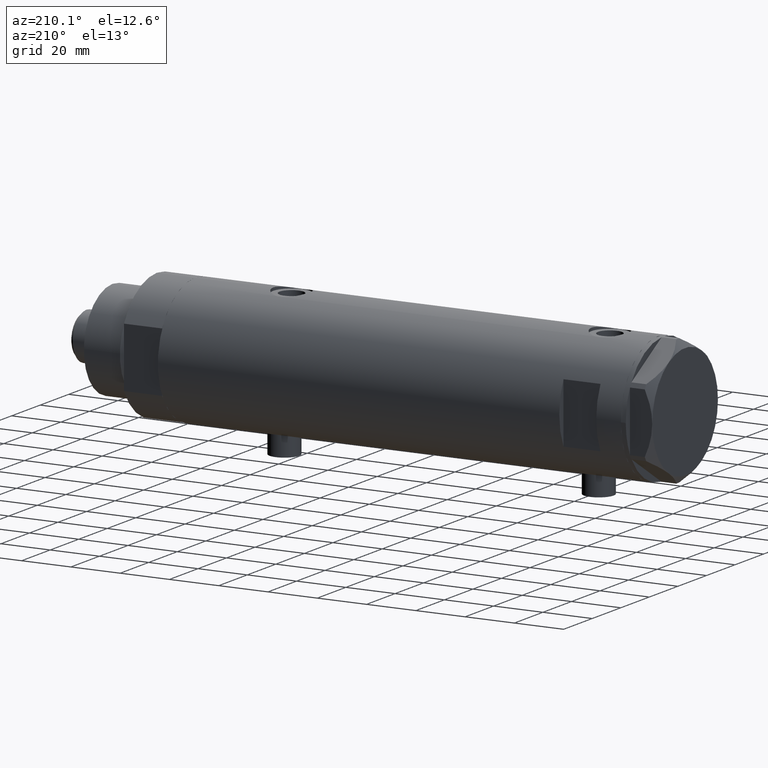
[diagram: clean part render]
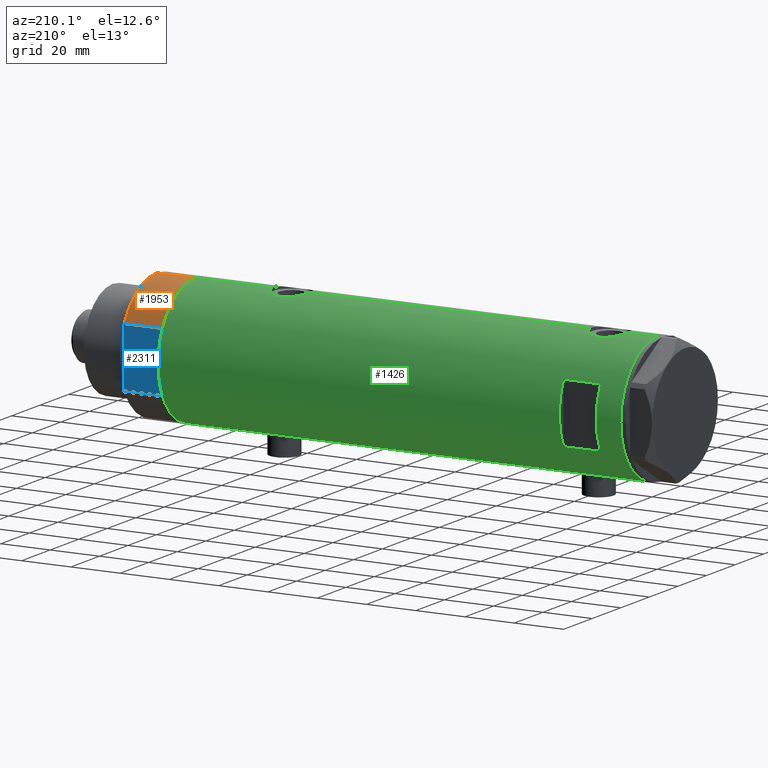
[diagram: same view with three faces highlighted in distinct colors, each labeled with its STEP entity id]
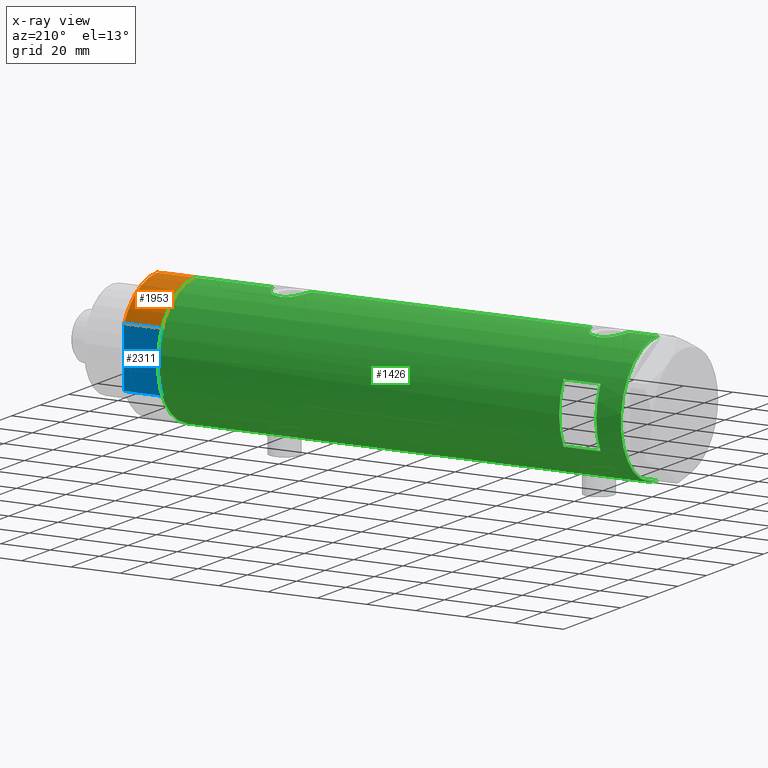
[diagram: x-ray of the same camera — body ghosted, the three highlighted faces saturated]
A machine part, auxiliary view with three faces highlighted in distinct colors.
The next image is the same camera in x-ray (body ghosted, the three faces saturated) — at least one of them is partly hidden behind the body in this view.
Their STEP definitions:

[orange] entity #1953 — the highlighted cylindrical surface (partial cylindrical patch) has radius 26 mm, axis along (-1, -0, 0).
#199 = CARTESIAN_POINT ( 'NONE',  ( 0.000000000000000000, 0.000000000000000000, 15.50000000000000000 ) ) ;
#253 = AXIS2_PLACEMENT_3D ( 'NONE', #199, #1687, #1322 ) ;
#622 = CARTESIAN_POINT ( 'NONE',  ( -12.12435565298214613, 23.00000000000000355, 15.50000000000000000 ) ) ;
#839 = EDGE_CURVE ( 'NONE', #2987, #3425, #1497, .T. ) ;
#883 = DIRECTION ( 'NONE',  ( 0.000000000000000000, 0.000000000000000000, 1.000000000000000000 ) ) ;
#924 = ORIENTED_EDGE ( 'NONE', *, *, #839, .F. ) ;
#943 = EDGE_CURVE ( 'NONE', #4454, #2987, #2189, .T. ) ;
#1066 = CYLINDRICAL_SURFACE ( 'NONE', #253, 26.00000000000000355 ) ;
#1110 = VECTOR ( 'NONE', #4506, 1000.000000000000000 ) ;
#1158 = CARTESIAN_POINT ( 'NONE',  ( 0.000000000000000000, 0.000000000000000000, 0.000000000000000000 ) ) ;
#1253 = VERTEX_POINT ( 'NONE', #4038 ) ;
#1259 = AXIS2_PLACEMENT_3D ( 'NONE', #2351, #3118, #1921 ) ;
#1292 = ORIENTED_EDGE ( 'NONE', *, *, #943, .F. ) ;
#1322 = DIRECTION ( 'NONE',  ( -1.000000000000000000, 0.000000000000000000, 0.000000000000000000 ) ) ;
#1373 = EDGE_LOOP ( 'NONE', ( #924, #1292, #1493, #3752 ) ) ;
#1493 = ORIENTED_EDGE ( 'NONE', *, *, #4557, .F. ) ;
#1497 = LINE ( 'NONE', #2986, #1110 ) ;
#1687 = DIRECTION ( 'NONE',  ( -0.000000000000000000, -0.000000000000000000, -1.000000000000000000 ) ) ;
#1751 = CARTESIAN_POINT ( 'NONE',  ( -12.12435565298215145, 23.00000000000000355, 0.000000000000000000 ) ) ;
#1921 = DIRECTION ( 'NONE',  ( 1.000000000000000000, 0.000000000000000000, 0.000000000000000000 ) ) ;
#1953 = ADVANCED_FACE ( 'NONE', ( #2550 ), #1066, .T. ) ;
#2189 = CIRCLE ( 'NONE', #1259, 26.00000000000000355 ) ;
#2351 = CARTESIAN_POINT ( 'NONE',  ( 0.000000000000000000, 0.000000000000000000, 15.50000000000000000 ) ) ;
#2508 = LINE ( 'NONE', #1751, #3801 ) ;
#2550 = FACE_OUTER_BOUND ( 'NONE', #1373, .T. ) ;
#2986 = CARTESIAN_POINT ( 'NONE',  ( -26.00000000000000355, 0.000000000000000000, 15.50000000000000000 ) ) ;
#2987 = VERTEX_POINT ( 'NONE', #3952 ) ;
#3118 = DIRECTION ( 'NONE',  ( 0.000000000000000000, 0.000000000000000000, 1.000000000000000000 ) ) ;
#3324 = CIRCLE ( 'NONE', #4834, 26.00000000000000355 ) ;
#3425 = VERTEX_POINT ( 'NONE', #4125 ) ;
#3752 = ORIENTED_EDGE ( 'NONE', *, *, #3984, .T. ) ;
#3801 = VECTOR ( 'NONE', #4062, 1000.000000000000000 ) ;
#3952 = CARTESIAN_POINT ( 'NONE',  ( -26.00000000000000355, 0.000000000000000000, 15.50000000000000000 ) ) ;
#3984 = EDGE_CURVE ( 'NONE', #1253, #3425, #3324, .T. ) ;
#4038 = CARTESIAN_POINT ( 'NONE',  ( -12.12435565298215145, 23.00000000000000355, 0.000000000000000000 ) ) ;
#4062 = DIRECTION ( 'NONE',  ( -0.000000000000000000, -0.000000000000000000, 1.000000000000000000 ) ) ;
#4125 = CARTESIAN_POINT ( 'NONE',  ( -26.00000000000000355, 0.000000000000000000, 0.000000000000000000 ) ) ;
#4454 = VERTEX_POINT ( 'NONE', #622 ) ;
#4506 = DIRECTION ( 'NONE',  ( -0.000000000000000000, -0.000000000000000000, -1.000000000000000000 ) ) ;
#4555 = DIRECTION ( 'NONE',  ( 1.000000000000000000, 0.000000000000000000, 0.000000000000000000 ) ) ;
#4557 = EDGE_CURVE ( 'NONE', #1253, #4454, #2508, .T. ) ;
#4834 = AXIS2_PLACEMENT_3D ( 'NONE', #1158, #883, #4555 ) ;

[blue] entity #2311 — the highlighted planar face has unit normal (0, -1, -0).
#133 = PLANE ( 'NONE',  #3388 ) ;
#201 = EDGE_CURVE ( 'NONE', #4454, #1129, #1566, .T. ) ;
#263 = ORIENTED_EDGE ( 'NONE', *, *, #201, .T. ) ;
#360 = EDGE_CURVE ( 'NONE', #4791, #1129, #3197, .T. ) ;
#529 = FACE_OUTER_BOUND ( 'NONE', #1896, .T. ) ;
#616 = CARTESIAN_POINT ( 'NONE',  ( 12.12435565298214080, 23.00000000000000355, 0.000000000000000000 ) ) ;
#622 = CARTESIAN_POINT ( 'NONE',  ( -12.12435565298214613, 23.00000000000000355, 15.50000000000000000 ) ) ;
#881 = ORIENTED_EDGE ( 'NONE', *, *, #360, .F. ) ;
#1129 = VERTEX_POINT ( 'NONE', #4835 ) ;
#1206 = DIRECTION ( 'NONE',  ( 1.000000000000000000, 0.000000000000000000, 0.000000000000000000 ) ) ;
#1237 = DIRECTION ( 'NONE',  ( 1.000000000000000000, 0.000000000000000000, 0.000000000000000000 ) ) ;
#1253 = VERTEX_POINT ( 'NONE', #4038 ) ;
#1566 = LINE ( 'NONE', #4566, #3058 ) ;
#1731 = ORIENTED_EDGE ( 'NONE', *, *, #4557, .T. ) ;
#1751 = CARTESIAN_POINT ( 'NONE',  ( -12.12435565298215145, 23.00000000000000355, 0.000000000000000000 ) ) ;
#1896 = EDGE_LOOP ( 'NONE', ( #263, #881, #4476, #1731 ) ) ;
#2128 = VECTOR ( 'NONE', #1206, 1000.000000000000000 ) ;
#2311 = ADVANCED_FACE ( 'NONE', ( #529 ), #133, .F. ) ;
#2421 = DIRECTION ( 'NONE',  ( 0.000000000000000000, -1.000000000000000000, 0.000000000000000000 ) ) ;
#2480 = DIRECTION ( 'NONE',  ( -0.000000000000000000, -0.000000000000000000, 1.000000000000000000 ) ) ;
#2508 = LINE ( 'NONE', #1751, #3801 ) ;
#2993 = LINE ( 'NONE', #3460, #2128 ) ;
#3054 = VECTOR ( 'NONE', #2480, 1000.000000000000000 ) ;
#3058 = VECTOR ( 'NONE', #1237, 1000.000000000000000 ) ;
#3113 = DIRECTION ( 'NONE',  ( 0.000000000000000000, -0.000000000000000000, -1.000000000000000000 ) ) ;
#3197 = LINE ( 'NONE', #4387, #3054 ) ;
#3388 = AXIS2_PLACEMENT_3D ( 'NONE', #3487, #2421, #3113 ) ;
#3460 = CARTESIAN_POINT ( 'NONE',  ( -12.12435565298215145, 23.00000000000000355, 0.000000000000000000 ) ) ;
#3487 = CARTESIAN_POINT ( 'NONE',  ( -12.12435565298215145, 23.00000000000000355, 0.000000000000000000 ) ) ;
#3801 = VECTOR ( 'NONE', #4062, 1000.000000000000000 ) ;
#3893 = EDGE_CURVE ( 'NONE', #1253, #4791, #2993, .T. ) ;
#4038 = CARTESIAN_POINT ( 'NONE',  ( -12.12435565298215145, 23.00000000000000355, 0.000000000000000000 ) ) ;
#4062 = DIRECTION ( 'NONE',  ( -0.000000000000000000, -0.000000000000000000, 1.000000000000000000 ) ) ;
#4387 = CARTESIAN_POINT ( 'NONE',  ( 12.12435565298215323, 23.00000000000000355, 0.000000000000000000 ) ) ;
#4454 = VERTEX_POINT ( 'NONE', #622 ) ;
#4476 = ORIENTED_EDGE ( 'NONE', *, *, #3893, .F. ) ;
#4557 = EDGE_CURVE ( 'NONE', #1253, #4454, #2508, .T. ) ;
#4566 = CARTESIAN_POINT ( 'NONE',  ( -12.12435565298215145, 23.00000000000000355, 15.50000000000000000 ) ) ;
#4791 = VERTEX_POINT ( 'NONE', #616 ) ;
#4835 = CARTESIAN_POINT ( 'NONE',  ( 12.12435565298214790, 23.00000000000000355, 15.50000000000000000 ) ) ;

[green] entity #1426 — the highlighted cylindrical surface (partial cylindrical patch) has radius 26 mm, axis along (-1, -0, 0).
#17 = B_SPLINE_CURVE_WITH_KNOTS ( 'NONE', 3,
 ( #1897, #3327, #3400, #2952, #50, #3030, #4544, #443, #3426, #485, #1647, #2723, #4662, #4691, #1285, #3079, #1608, #3845, #2404, #94, #2704, #3121, #3874, #2383, #2796, #2025, #185, #3103, #2330, #1585, #4614, #1236, #939, #515, #4589, #1989, #3497, #1789, #3287, #4439, #4711, #1332, #1071, #3938, #612, #2049 ),
 .UNSPECIFIED., .F., .F.,
 ( 4, 2, 2, 2, 2, 2, 2, 2, 2, 2, 2, 2, 2, 2, 2, 2, 2, 2, 2, 2, 2, 2, 4 ),
 ( 3.246886709775799722E-19, 0.001473395154583074379, 0.002210092731874609400, 0.002946790309166144421, 0.004420185463749214463, 0.005156883041040750786, 0.005893580618332287108, 0.007366975772915358017, 0.008840370927498430662, 0.009577068504789955708, 0.01031376608208147902, 0.01178716123666452911, 0.01326055639124757921, 0.01473395154583062930, 0.01547064912312214567, 0.01620734670041366204, 0.01694404427770517668, 0.01768074185499669479, 0.01915413700957973794, 0.02062753216416278457, 0.02210092731874583119, 0.02283762489603735277, 0.02357432247332888128 ),
 .UNSPECIFIED. ) ;
#19 = CARTESIAN_POINT ( 'NONE',  ( 25.31017500740586001, 5.951503630041874437, 79.02049592637401076 ) ) ;
#50 = CARTESIAN_POINT ( 'NONE',  ( 25.92799636947105313, 1.948138538329397651, -61.99677687788213376 ) ) ;
#65 = CARTESIAN_POINT ( 'NONE',  ( 26.00000000000000355, 0.000000000000000000, -93.95000000000000284 ) ) ;
#80 = CARTESIAN_POINT ( 'NONE',  ( -25.23766275406408965, 6.249830297096023557, 70.36191904555120402 ) ) ;
#94 = CARTESIAN_POINT ( 'NONE',  ( 24.97016856345952718, 7.245430721349219283, -56.70303040919392856 ) ) ;
#107 = CARTESIAN_POINT ( 'NONE',  ( -25.52242378584899640, 4.965907353613394193, 73.76719602921740204 ) ) ;
#131 = CARTESIAN_POINT ( 'NONE',  ( -25.81251897318926680, 3.135439098787735190, 75.37199178085172946 ) ) ;
#144 = CARTESIAN_POINT ( 'NONE',  ( 25.63006864069250668, 4.375159448492141223, 68.35345588241118264 ) ) ;
#155 = DIRECTION ( 'NONE',  ( 0.000000000000000000, 0.000000000000000000, 1.000000000000000000 ) ) ;
#156 = CARTESIAN_POINT ( 'NONE',  ( -26.00000000000000355, 3.184081677783118585E-15, -93.95000000000000284 ) ) ;
#173 = CARTESIAN_POINT ( 'NONE',  ( -25.42927140605242187, 5.422776733968214025, 73.08443996013286892 ) ) ;
#185 = CARTESIAN_POINT ( 'NONE',  ( 25.00820649268565887, 7.115348876445586335, -52.32815999524549966 ) ) ;
#198 = CARTESIAN_POINT ( 'NONE',  ( -25.99759026373432391, 0.4091325989570679389, 63.71000109955102175 ) ) ;
#204 = CARTESIAN_POINT ( 'NONE',  ( 26.00000000000000355, 0.000000000000000000, 93.95000000000000284 ) ) ;
#232 = CARTESIAN_POINT ( 'NONE',  ( 25.92799636947105668, 1.948138538329397651, 67.20322312211786198 ) ) ;
#266 = ORIENTED_EDGE ( 'NONE', *, *, #2728, .F. ) ;
#278 = CARTESIAN_POINT ( 'NONE',  ( -25.42927140605242187, 5.422776733968219354, -54.51556003986718224 ) ) ;
#285 = ORIENTED_EDGE ( 'NONE', *, *, #4533, .F. ) ;
#305 = CARTESIAN_POINT ( 'NONE',  ( -25.95015815577423268, 1.621168830448744158, -51.61041429560182081 ) ) ;
#320 = CARTESIAN_POINT ( 'NONE',  ( -25.36894112891956254, 5.694149517195242538, -60.23482505198307990 ) ) ;
#327 = DIRECTION ( 'NONE',  ( 0.000000000000000000, 0.000000000000000000, 1.000000000000000000 ) ) ;
#329 = CARTESIAN_POINT ( 'NONE',  ( -25.38675822915647728, 5.615881323213575804, -54.87693218337989265 ) ) ;
#331 = AXIS2_PLACEMENT_3D ( 'NONE', #1094, #1122, #1488 ) ;
#338 = CARTESIAN_POINT ( 'NONE',  ( 25.97197502027376004, 1.230965554787597060, 81.85240824498373513 ) ) ;
#347 = ORIENTED_EDGE ( 'NONE', *, *, #877, .F. ) ;
#352 = EDGE_CURVE ( 'NONE', #3330, #1838, #2098, .T. ) ;
#359 = DIRECTION ( 'NONE',  ( 1.000000000000000000, 0.000000000000000000, 0.000000000000000000 ) ) ;
#361 = VECTOR ( 'NONE', #695, 1000.000000000000000 ) ;
#364 = VERTEX_POINT ( 'NONE', #536 ) ;
#368 = CARTESIAN_POINT ( 'NONE',  ( 25.78997056644825392, 3.329333406239046056, 81.18834808433850014 ) ) ;
#384 = CARTESIAN_POINT ( 'NONE',  ( 25.59685363299823635, 4.579266302355753382, 80.40972068102654191 ) ) ;
#411 = CARTESIAN_POINT ( 'NONE',  ( 25.38117076385347559, 5.641057083563602248, 79.39856579741847042 ) ) ;
#419 = EDGE_CURVE ( 'NONE', #4272, #3283, #3544, .T. ) ;
#443 = CARTESIAN_POINT ( 'NONE',  ( 25.78922176490237916, 3.335318700939508219, -61.48550568766475521 ) ) ;
#483 = VECTOR ( 'NONE', #1408, 1000.000000000000000 ) ;
#485 = CARTESIAN_POINT ( 'NONE',  ( 25.63006864069249602, 4.375159448492148329, -60.84654411758881309 ) ) ;
#515 = CARTESIAN_POINT ( 'NONE',  ( 25.38117076385348625, 5.641057083563588037, -49.80143420258151821 ) ) ;
#536 = CARTESIAN_POINT ( 'NONE',  ( -12.12435565298214080, 23.00000000000000355, 68.95000000000000284 ) ) ;
#548 = CARTESIAN_POINT ( 'NONE',  ( -25.33346170681504361, 5.849967696906720249, 72.15947052099508596 ) ) ;
#555 = CARTESIAN_POINT ( 'NONE',  ( 26.00000000000000355, 3.343657407582877388E-16, -62.25000000000000000 ) ) ;
#561 = ORIENTED_EDGE ( 'NONE', *, *, #593, .F. ) ;
#593 = EDGE_CURVE ( 'NONE', #4026, #4060, #1810, .T. ) ;
#603 = CARTESIAN_POINT ( 'NONE',  ( -25.31518616157687163, 5.930210831981644226, -59.66587117207024704 ) ) ;
#612 = CARTESIAN_POINT ( 'NONE',  ( 26.00000000000000000, 0.2455784580650491877, -47.25000000000000000 ) ) ;
#620 = VERTEX_POINT ( 'NONE', #1554 ) ;
#630 = CARTESIAN_POINT ( 'NONE',  ( -25.81251897318926680, 3.135439098787741852, -52.22800821914827907 ) ) ;
#638 = CARTESIAN_POINT ( 'NONE',  ( 25.17424625143663519, 6.506691718592092499, 70.68758373966274178 ) ) ;
#695 = DIRECTION ( 'NONE',  ( 0.000000000000000000, 0.000000000000000000, 1.000000000000000000 ) ) ;
#704 = CARTESIAN_POINT ( 'NONE',  ( -25.99009688862344092, 0.8219492608955333290, -51.44084060773424483 ) ) ;
#720 = ORIENTED_EDGE ( 'NONE', *, *, #947, .F. ) ;
#859 = EDGE_CURVE ( 'NONE', #2109, #4026, #2953, .T. ) ;
#861 = CARTESIAN_POINT ( 'NONE',  ( -25.81206132723604796, 3.139065735901513055, 64.53021230639123473 ) ) ;
#873 = CARTESIAN_POINT ( 'NONE',  ( 25.01140519645288762, 7.101774040639619479, 72.02607764299175130 ) ) ;
#877 = EDGE_CURVE ( 'NONE', #3257, #364, #3133, .T. ) ;
#878 = CARTESIAN_POINT ( 'NONE',  ( -25.99009688862344092, 0.8219492608955324409, 76.15915939226574949 ) ) ;
#907 = CARTESIAN_POINT ( 'NONE',  ( -25.67095236150574777, 4.133649689219788925, 74.65535228274264057 ) ) ;
#929 = CARTESIAN_POINT ( 'NONE',  ( -25.36894112891957320, 5.694149517195235433, 67.36517494801691441 ) ) ;
#930 = B_SPLINE_CURVE_WITH_KNOTS ( 'NONE', 3,
 ( #3588, #4069, #704, #3668, #305, #2841, #3211, #1325, #630, #4357, #2175, #3640, #4808, #278, #329, #1761, #4787, #2910, #4430, #960, #3313, #4324, #2446, #3958, #603, #320, #2903, #3304, #2511, #4089, #1852, #2959, #4422, #2857, #4859, #2220, #3660, #2192, #4374, #1781, #4480, #2544, #1082, #3741 ),
 .UNSPECIFIED., .F., .F.,
 ( 4, 2, 2, 2, 2, 2, 2, 2, 2, 2, 2, 2, 2, 2, 2, 2, 2, 2, 2, 2, 2, 4 ),
 ( 8.259724962660511443E-19, 0.001225774033668413547, 0.001838661050502616960, 0.002451548067336820590, 0.003677322101005227849, 0.004903096134673635108, 0.006128870168342044969, 0.007354644202010452228, 0.007967531218844647184, 0.008580418235678840405, 0.009806192269347230317, 0.01103196630301561676, 0.01225774033668400667, 0.01287062735351820163, 0.01348351437035239485, 0.01409640138718658807, 0.01470928840402078129, 0.01593506243768920069, 0.01716083647135761489, 0.01838661050502603256, 0.01899949752186024313, 0.01961238453869445023 ),
 .UNSPECIFIED. ) ;
#939 = CARTESIAN_POINT ( 'NONE',  ( 25.31017500740584936, 5.951503630041857562, -50.17950407362597076 ) ) ;
#947 = EDGE_CURVE ( 'NONE', #620, #1973, #1802, .T. ) ;
#960 = CARTESIAN_POINT ( 'NONE',  ( -25.24766879991037882, 6.209837761082661167, -56.83150430970306388 ) ) ;
#971 = CARTESIAN_POINT ( 'NONE',  ( -26.00000000000000355, 3.184077527325983904E-15, 63.70000000000000995 ) ) ;
#997 = CARTESIAN_POINT ( 'NONE',  ( 26.00000000000000355, -2.747580718823405516E-15, 66.95000000000000284 ) ) ;
#1028 = CARTESIAN_POINT ( 'NONE',  ( 26.00000000000000355, -3.975025925197986111E-20, -47.25000000000000000 ) ) ;
#1058 = CARTESIAN_POINT ( 'NONE',  ( -26.00000000000000355, 3.184077527325983904E-15, 63.70000000000000995 ) ) ;
#1071 = CARTESIAN_POINT ( 'NONE',  ( 25.98255381630415783, 0.9836221648041303389, -47.31066901941807856 ) ) ;
#1076 = DIRECTION ( 'NONE',  ( -0.000000000000000000, -0.000000000000000000, -1.000000000000000000 ) ) ;
#1082 = CARTESIAN_POINT ( 'NONE',  ( -26.00000000000000711, 0.2043916521039016998, -63.90000000000001279 ) ) ;
#1094 = CARTESIAN_POINT ( 'NONE',  ( 0.000000000000000000, 0.000000000000000000, 68.95000000000008811 ) ) ;
#1122 = DIRECTION ( 'NONE',  ( 0.000000000000000000, 4.625929269271486900E-15, 1.000000000000000000 ) ) ;
#1157 = EDGE_CURVE ( 'NONE', #4060, #4304, #2350, .T. ) ;
#1220 = CARTESIAN_POINT ( 'NONE',  ( 25.86510134953875450, 2.654921787384013854, 67.43132938305096502 ) ) ;
#1225 = CARTESIAN_POINT ( 'NONE',  ( -25.28915991580760192, 6.038390257328910771, 71.57552651146907863 ) ) ;
#1236 = CARTESIAN_POINT ( 'NONE',  ( 25.27545867390324119, 6.096774941222088628, -50.37522593042033492 ) ) ;
#1239 = EDGE_CURVE ( 'NONE', #3603, #3283, #2692, .T. ) ;
#1285 = CARTESIAN_POINT ( 'NONE',  ( 25.30960479024496479, 5.958491152160522830, -59.33139677679963597 ) ) ;
#1325 = CARTESIAN_POINT ( 'NONE',  ( -25.85406084573621754, 2.777003695811657735, -52.03587158673904156 ) ) ;
#1332 = CARTESIAN_POINT ( 'NONE',  ( 25.97197502027375293, 1.230965554787593730, -47.34759175501623218 ) ) ;
#1367 = CARTESIAN_POINT ( 'NONE',  ( 24.89471231507667426, 7.500219916954787180, 74.93878226883029470 ) ) ;
#1390 = CARTESIAN_POINT ( 'NONE',  ( 25.20855488770172315, 6.367749707222633226, 78.42002223040960018 ) ) ;
#1408 = DIRECTION ( 'NONE',  ( 0.000000000000000000, 0.000000000000000000, 1.000000000000000000 ) ) ;
#1426 = ADVANCED_FACE ( 'NONE', ( #3380, #3713 ), #4527, .T. ) ;
#1442 = ORIENTED_EDGE ( 'NONE', *, *, #1840, .F. ) ;
#1466 = CARTESIAN_POINT ( 'NONE',  ( 25.41763780493359803, 5.474943943663456380, 79.58176313788932532 ) ) ;
#1488 = DIRECTION ( 'NONE',  ( 0.000000000000000000, 1.000000000000000000, -4.803849625781927035E-15 ) ) ;
#1554 = CARTESIAN_POINT ( 'NONE',  ( -12.12435565298214080, 23.00000000000000355, 83.95000000000000284 ) ) ;
#1585 = CARTESIAN_POINT ( 'NONE',  ( 25.17636585680005723, 6.493453152855874322, -50.98900750337196541 ) ) ;
#1593 = CARTESIAN_POINT ( 'NONE',  ( -26.00000000000000355, -8.503928565788675107E-16, -51.39999999999999858 ) ) ;
#1595 = CARTESIAN_POINT ( 'NONE',  ( -25.38675822915647728, 5.615881323213574028, 72.72306781662010167 ) ) ;
#1608 = CARTESIAN_POINT ( 'NONE',  ( 25.11254978876589306, 6.737777305585159304, -58.08025351746411502 ) ) ;
#1614 = CARTESIAN_POINT ( 'NONE',  ( 24.97016856345952007, 7.245430721349213954, 72.49696959080606007 ) ) ;
#1620 = VERTEX_POINT ( 'NONE', #65 ) ;
#1626 = CARTESIAN_POINT ( 'NONE',  ( -26.00000000000000355, 1.227111019500118713E-15, 76.20000000000001705 ) ) ;
#1633 = CARTESIAN_POINT ( 'NONE',  ( 24.89484527721569052, 7.499778575171894168, 73.95449194517063063 ) ) ;
#1639 = CARTESIAN_POINT ( 'NONE',  ( -25.90661719257679607, 2.209805098346973029, 75.79988745781523107 ) ) ;
#1647 = CARTESIAN_POINT ( 'NONE',  ( 25.59528664075983428, 4.573671112500298896, -60.69909503516726090 ) ) ;
#1653 = VECTOR ( 'NONE', #4431, 1000.000000000000000 ) ;
#1709 = CARTESIAN_POINT ( 'NONE',  ( -25.98057228346869607, 1.024901789261878138, 63.78119414145174204 ) ) ;
#1719 = CARTESIAN_POINT ( 'NONE',  ( 25.78922176490238272, 3.335318700939508219, 67.71449431233527605 ) ) ;
#1744 = CARTESIAN_POINT ( 'NONE',  ( 25.17636585680005723, 6.493453152855874322, 78.21099249662802322 ) ) ;
#1761 = CARTESIAN_POINT ( 'NONE',  ( -25.33346170681504006, 5.849967696906726466, -55.44052947900495809 ) ) ;
#1768 = CARTESIAN_POINT ( 'NONE',  ( 25.94484652078418563, 1.709678645892022342, 67.14334653240823059 ) ) ;
#1781 = CARTESIAN_POINT ( 'NONE',  ( -25.98057228346870673, 1.024901789261887464, -63.81880585854828070 ) ) ;
#1789 = CARTESIAN_POINT ( 'NONE',  ( 25.72868876879095623, 3.768709330223690479, -48.24732513129933409 ) ) ;
#1801 = DIRECTION ( 'NONE',  ( 0.000000000000000000, 0.000000000000000000, 1.000000000000000000 ) ) ;
#1802 = CIRCLE ( 'NONE', #2736, 26.00000000000000355 ) ;
#1810 = LINE ( 'NONE', #4229, #2584 ) ;
#1838 = VERTEX_POINT ( 'NONE', #2865 ) ;
#1840 = EDGE_CURVE ( 'NONE', #2422, #2109, #4463, .T. ) ;
#1852 = CARTESIAN_POINT ( 'NONE',  ( -25.52275868012768356, 4.960454986366454655, -61.45761629406634796 ) ) ;
#1870 = CARTESIAN_POINT ( 'NONE',  ( 25.93077501166307641, 1.957027822413550888, 81.70697858562411398 ) ) ;
#1897 = CARTESIAN_POINT ( 'NONE',  ( 26.00000000000000355, 3.343657407582877388E-16, -62.25000000000000000 ) ) ;
#1952 = CARTESIAN_POINT ( 'NONE',  ( -26.00000000000000355, 1.227111019500118713E-15, 76.20000000000001705 ) ) ;
#1973 = VERTEX_POINT ( 'NONE', #3917 ) ;
#1975 = ORIENTED_EDGE ( 'NONE', *, *, #419, .T. ) ;
#1978 = VECTOR ( 'NONE', #3338, 1000.000000000000000 ) ;
#1989 = CARTESIAN_POINT ( 'NONE',  ( 25.52590365620542912, 4.955152228772147893, -49.09876272411761988 ) ) ;
#2003 = CARTESIAN_POINT ( 'NONE',  ( 26.00000000000000355, -2.747580718823405516E-15, 66.95000000000000284 ) ) ;
#2013 = CARTESIAN_POINT ( 'NONE',  ( -25.31738333113901263, 5.918941409682878074, 71.96757922472318114 ) ) ;
#2021 = DIRECTION ( 'NONE',  ( 1.000000000000000000, 0.000000000000000000, 0.000000000000000000 ) ) ;
#2025 = CARTESIAN_POINT ( 'NONE',  ( 24.96662810169869573, 7.257932614256868753, -52.79702690473266102 ) ) ;
#2049 = CARTESIAN_POINT ( 'NONE',  ( 26.00000000000000355, -3.975025925197986111E-20, -47.25000000000000000 ) ) ;
#2098 = LINE ( 'NONE', #2869, #4012 ) ;
#2101 = CARTESIAN_POINT ( 'NONE',  ( 24.96662810169869573, 7.257932614256865200, 76.40297309526735603 ) ) ;
#2109 = VERTEX_POINT ( 'NONE', #2003 ) ;
#2146 = CARTESIAN_POINT ( 'NONE',  ( -26.00000000000000000, 0.2043916521039007284, 63.69999999999999574 ) ) ;
#2175 = CARTESIAN_POINT ( 'NONE',  ( -25.67095236150573712, 4.133649689219792478, -52.94464771725741770 ) ) ;
#2192 = CARTESIAN_POINT ( 'NONE',  ( -25.92432690655987315, 2.018143994254076201, -63.57929422822715537 ) ) ;
#2201 = DIRECTION ( 'NONE',  ( 0.000000000000000000, 0.000000000000000000, 1.000000000000000000 ) ) ;
#2211 = CIRCLE ( 'NONE', #4508, 26.00000000000000355 ) ;
#2220 = CARTESIAN_POINT ( 'NONE',  ( -25.81206132723605506, 3.139065735901513055, -63.06978769360878090 ) ) ;
#2228 = LINE ( 'NONE', #4118, #4751 ) ;
#2320 = CARTESIAN_POINT ( 'NONE',  ( -25.57167265924275057, 4.701795585128869526, 65.82723711689968127 ) ) ;
#2330 = CARTESIAN_POINT ( 'NONE',  ( 25.11550258961939974, 6.725017566862030449, -51.42071522193980826 ) ) ;
#2336 = CARTESIAN_POINT ( 'NONE',  ( 25.11254978876589306, 6.737777305585155752, 71.11974648253585940 ) ) ;
#2341 = DIRECTION ( 'NONE',  ( 0.000000000000000000, 0.000000000000000000, 1.000000000000000000 ) ) ;
#2350 = CIRCLE ( 'NONE', #3063, 26.00000000000000355 ) ;
#2359 = CARTESIAN_POINT ( 'NONE',  ( 24.90951684770588770, 7.451587374037535128, 73.46604395478802019 ) ) ;
#2383 = CARTESIAN_POINT ( 'NONE',  ( 24.89471231507667071, 7.500219916954787180, -54.26121773116971525 ) ) ;
#2404 = CARTESIAN_POINT ( 'NONE',  ( 25.01140519645288762, 7.101774040639623919, -57.17392235700823733 ) ) ;
#2407 = EDGE_CURVE ( 'NONE', #4272, #1838, #930, .T. ) ;
#2416 = CARTESIAN_POINT ( 'NONE',  ( -25.45277932469920046, 5.307477387851101014, 66.64327199834690418 ) ) ;
#2422 = VERTEX_POINT ( 'NONE', #1028 ) ;
#2439 = ORIENTED_EDGE ( 'NONE', *, *, #3124, .T. ) ;
#2446 = CARTESIAN_POINT ( 'NONE',  ( -25.24784248027028966, 6.209126813737967154, -58.47268161688059251 ) ) ;
#2482 = CARTESIAN_POINT ( 'NONE',  ( 25.88814720404043968, 2.420758939209242566, 67.34711713171545000 ) ) ;
#2511 = CARTESIAN_POINT ( 'NONE',  ( -25.45277932469921467, 5.307477387851106343, -60.95672800165311855 ) ) ;
#2512 = CARTESIAN_POINT ( 'NONE',  ( -25.85449082491264150, 2.772892880050696007, 64.33390702514678594 ) ) ;
#2544 = CARTESIAN_POINT ( 'NONE',  ( -25.99759026373432036, 0.4091325989570689381, -63.88999890044897967 ) ) ;
#2582 = CARTESIAN_POINT ( 'NONE',  ( 25.98255381630416139, 0.9836221648041364451, 81.88933098058191717 ) ) ;
#2584 = VECTOR ( 'NONE', #2341, 1000.000000000000000 ) ;
#2611 = DIRECTION ( 'NONE',  ( 1.000000000000000000, 0.000000000000000000, 0.000000000000000000 ) ) ;
#2635 = CARTESIAN_POINT ( 'NONE',  ( 0.000000000000000000, 0.000000000000000000, -93.95000000000000284 ) ) ;
#2687 = ORIENTED_EDGE ( 'NONE', *, *, #3499, .F. ) ;
#2691 = CARTESIAN_POINT ( 'NONE',  ( -25.43062364804611875, 5.412314182902751902, 66.81772351419068912 ) ) ;
#2692 = B_SPLINE_CURVE_WITH_KNOTS ( 'NONE', 3,
 ( #1952, #4605, #878, #2759, #3883, #3483, #1639, #3062, #131, #4277, #907, #3905, #107, #173, #1595, #548, #2013, #1225, #2712, #4228, #80, #3530, #2783, #3160, #4297, #929, #4209, #2691, #2416, #3925, #3435, #2320, #3458, #3834, #3090, #861, #2512, #4350, #3274, #1709, #4423, #198, #2146, #1058 ),
 .UNSPECIFIED., .F., .F.,
 ( 4, 2, 2, 2, 2, 2, 2, 2, 2, 2, 2, 2, 2, 2, 2, 2, 2, 2, 2, 2, 2, 4 ),
 ( 1.191872608207982896E-18, 0.001225774033668414415, 0.001838661050502624766, 0.002451548067336834901, 0.003677322101005254303, 0.004903096134673673272, 0.006128870168342093541, 0.007354644202010512943, 0.007967531218844704430, 0.008580418235678894182, 0.009806192269347313584, 0.01103196630301573472, 0.01225774033668415586, 0.01287062735351834561, 0.01348351437035253536, 0.01409640138718672858, 0.01470928840402092007, 0.01593506243768930131, 0.01716083647135768081, 0.01838661050502606725, 0.01899949752186025700, 0.01961238453869444676 ),
 .UNSPECIFIED. ) ;
#2704 = CARTESIAN_POINT ( 'NONE',  ( 24.95233689475079331, 7.306396477445179727, -56.46103813146666539 ) ) ;
#2709 = CARTESIAN_POINT ( 'NONE',  ( 25.59528664075984139, 4.573671112500290903, 68.50090496483272773 ) ) ;
#2712 = CARTESIAN_POINT ( 'NONE',  ( -25.27696731428695998, 6.089059008147561514, 71.37416306959482881 ) ) ;
#2718 = DIRECTION ( 'NONE',  ( -0.000000000000000000, -0.000000000000000000, -1.000000000000000000 ) ) ;
#2723 = CARTESIAN_POINT ( 'NONE',  ( 25.52465069878074999, 4.952713637311402906, -60.38744860815256743 ) ) ;
#2728 = EDGE_CURVE ( 'NONE', #3156, #2422, #17, .T. ) ;
#2736 = AXIS2_PLACEMENT_3D ( 'NONE', #2743, #2718, #4260 ) ;
#2743 = CARTESIAN_POINT ( 'NONE',  ( 0.000000000000000000, 0.000000000000000000, 83.95000000000000284 ) ) ;
#2759 = CARTESIAN_POINT ( 'NONE',  ( -25.96182217530153480, 1.422664245316465959, 76.03935273092392322 ) ) ;
#2769 = CARTESIAN_POINT ( 'NONE',  ( 0.000000000000000000, 0.000000000000000000, -93.95000000000000284 ) ) ;
#2783 = CARTESIAN_POINT ( 'NONE',  ( -25.24784248027028966, 6.209126813737962713, 69.12731838311943022 ) ) ;
#2796 = CARTESIAN_POINT ( 'NONE',  ( 24.90976107960111818, 7.450765568638821890, -53.76117130648535181 ) ) ;
#2823 = CARTESIAN_POINT ( 'NONE',  ( 25.08669247833292459, 6.831361936037321669, 77.55537739403790454 ) ) ;
#2841 = CARTESIAN_POINT ( 'NONE',  ( -25.92257874449351007, 2.014648337067152184, -51.73003581636323389 ) ) ;
#2857 = CARTESIAN_POINT ( 'NONE',  ( -25.67176285215958131, 4.128807479817791837, -62.35991598451128226 ) ) ;
#2865 = CARTESIAN_POINT ( 'NONE',  ( -26.00000000000000355, 3.184077527250253257E-15, -63.90000000000001279 ) ) ;
#2869 = CARTESIAN_POINT ( 'NONE',  ( -26.00000000000000355, 3.184081677783118585E-15, -93.95000000000000284 ) ) ;
#2903 = CARTESIAN_POINT ( 'NONE',  ( -25.38875076695534361, 5.605452563035141722, -60.42185900824105715 ) ) ;
#2910 = CARTESIAN_POINT ( 'NONE',  ( -25.28915991580758771, 6.038390257328915212, -56.02447348853092279 ) ) ;
#2920 = CARTESIAN_POINT ( 'NONE',  ( 26.00000000000000355, -3.975028449552882818E-20, 81.94999999999998863 ) ) ;
#2922 = LINE ( 'NONE', #4447, #3397 ) ;
#2946 = CARTESIAN_POINT ( 'NONE',  ( 26.00000000000000711, 0.2455784580650491045, 81.94999999999997442 ) ) ;
#2952 = CARTESIAN_POINT ( 'NONE',  ( 25.94484652078418563, 1.709678645892020787, -62.05665346759173673 ) ) ;
#2953 = B_SPLINE_CURVE_WITH_KNOTS ( 'NONE', 3,
 ( #997, #3967, #3597, #1768, #232, #2482, #1220, #1719, #4023, #144, #2709, #3219, #4223, #3995, #4767, #638, #2336, #3853, #873, #1614, #4619, #2359, #1633, #1367, #3502, #2101, #4714, #2823, #4334, #1744, #1390, #3676, #19, #411, #1466, #3702, #384, #3291, #368, #4816, #1870, #338, #2582, #3325, #2946, #2920 ),
 .UNSPECIFIED., .F., .F.,
 ( 4, 2, 2, 2, 2, 2, 2, 2, 2, 2, 2, 2, 2, 2, 2, 2, 2, 2, 2, 2, 2, 2, 4 ),
 ( 2.668061416744542197E-18, 0.001473395154583026240, 0.002210092731874533506, 0.002946790309166040771, 0.004420185463749071349, 0.005156883041040585987, 0.005893580618332101492, 0.007366975772915162861, 0.008840370927498224229, 0.009577068504789754480, 0.01031376608208128473, 0.01178716123666438687, 0.01326055639124748900, 0.01473395154583059113, 0.01547064912312212312, 0.01620734670041365511, 0.01694404427770518709, 0.01768074185499672255, 0.01915413700957975529, 0.02062753216416278457, 0.02210092731874581731, 0.02283762489603732848, 0.02357432247332884312 ),
 .UNSPECIFIED. ) ;
#2959 = CARTESIAN_POINT ( 'NONE',  ( -25.57167265924275057, 4.701795585128879296, -61.77276288310033436 ) ) ;
#2989 = LINE ( 'NONE', #3311, #1978 ) ;
#3030 = CARTESIAN_POINT ( 'NONE',  ( 25.88814720404043968, 2.420758939209242566, -61.85288286828453153 ) ) ;
#3062 = CARTESIAN_POINT ( 'NONE',  ( -25.85406084573621754, 2.777003695811651962, 75.56412841326095986 ) ) ;
#3063 = AXIS2_PLACEMENT_3D ( 'NONE', #4183, #2201, #359 ) ;
#3079 = CARTESIAN_POINT ( 'NONE',  ( 25.17424625143663164, 6.506691718592096940, -58.51241626033723975 ) ) ;
#3090 = CARTESIAN_POINT ( 'NONE',  ( -25.72087293759779669, 3.814831448865735997, 64.98261705172141944 ) ) ;
#3103 = CARTESIAN_POINT ( 'NONE',  ( 25.08669247833291749, 6.831361936037321669, -51.64462260596209831 ) ) ;
#3121 = CARTESIAN_POINT ( 'NONE',  ( 24.90951684770588415, 7.451587374037536016, -55.73395604521197555 ) ) ;
#3124 = EDGE_CURVE ( 'NONE', #1620, #3330, #2211, .T. ) ;
#3133 = CIRCLE ( 'NONE', #331, 26.00000000000000355 ) ;
#3156 = VERTEX_POINT ( 'NONE', #555 ) ;
#3160 = CARTESIAN_POINT ( 'NONE',  ( -25.28673619335055278, 6.048783215285170378, 68.32449009651820404 ) ) ;
#3185 = ORIENTED_EDGE ( 'NONE', *, *, #352, .T. ) ;
#3211 = CARTESIAN_POINT ( 'NONE',  ( -25.90661719257678541, 2.209805098346977914, -51.80011254218477745 ) ) ;
#3219 = CARTESIAN_POINT ( 'NONE',  ( 25.52465069878074289, 4.952713637311392247, 68.81255139184744962 ) ) ;
#3257 = VERTEX_POINT ( 'NONE', #3898 ) ;
#3274 = CARTESIAN_POINT ( 'NONE',  ( -25.95208098418916975, 1.628413954368974625, 63.90193207829288013 ) ) ;
#3275 = ORIENTED_EDGE ( 'NONE', *, *, #859, .F. ) ;
#3282 = CARTESIAN_POINT ( 'NONE',  ( 26.00000000000000355, 0.000000000000000000, -93.95000000000000284 ) ) ;
#3283 = VERTEX_POINT ( 'NONE', #971 ) ;
#3287 = CARTESIAN_POINT ( 'NONE',  ( 25.78997056644824326, 3.329333406239038951, -48.01165191566153112 ) ) ;
#3291 = CARTESIAN_POINT ( 'NONE',  ( 25.72868876879096334, 3.768709330223698473, 80.95267486870062612 ) ) ;
#3304 = CARTESIAN_POINT ( 'NONE',  ( -25.43062364804612940, 5.412314182902760784, -60.78227648580931941 ) ) ;
#3311 = CARTESIAN_POINT ( 'NONE',  ( -12.12435565298214080, 23.00000000000000355, -93.95000000000000284 ) ) ;
#3313 = CARTESIAN_POINT ( 'NONE',  ( -25.23766275406409676, 6.249830297096031551, -57.23808095444884003 ) ) ;
#3325 = CARTESIAN_POINT ( 'NONE',  ( 25.99652140603931727, 0.4914164889130596126, 81.93796820480459075 ) ) ;
#3327 = CARTESIAN_POINT ( 'NONE',  ( 26.00000000000000711, 0.4983968644076025023, -62.25000000000002132 ) ) ;
#3330 = VERTEX_POINT ( 'NONE', #156 ) ;
#3338 = DIRECTION ( 'NONE',  ( 0.000000000000000000, 0.000000000000000000, 1.000000000000000000 ) ) ;
#3380 = FACE_BOUND ( 'NONE', #4637, .T. ) ;
#3383 = ORIENTED_EDGE ( 'NONE', *, *, #1239, .F. ) ;
#3397 = VECTOR ( 'NONE', #1076, 1000.000000000000000 ) ;
#3400 = CARTESIAN_POINT ( 'NONE',  ( 25.98569222077104968, 0.9879514382926379845, -62.20081846687560301 ) ) ;
#3426 = CARTESIAN_POINT ( 'NONE',  ( 25.72923282622328855, 3.765147152416745246, -61.25485575784708914 ) ) ;
#3435 = CARTESIAN_POINT ( 'NONE',  ( -25.52275868012768356, 4.960454986366445773, 66.14238370593371030 ) ) ;
#3458 = CARTESIAN_POINT ( 'NONE',  ( -25.59680708126579773, 4.563450671387936808, 65.67456050020027192 ) ) ;
#3466 = EDGE_LOOP ( 'NONE', ( #2439, #3185, #4036, #1975, #3383, #3664, #4269, #561, #3275, #1442, #266, #285 ) ) ;
#3483 = CARTESIAN_POINT ( 'NONE',  ( -25.92257874449350652, 2.014648337067151296, 75.86996418363679595 ) ) ;
#3497 = CARTESIAN_POINT ( 'NONE',  ( 25.59685363299823280, 4.579266302355748053, -48.79027931897346804 ) ) ;
#3499 = EDGE_CURVE ( 'NONE', #1973, #3257, #2922, .T. ) ;
#3502 = CARTESIAN_POINT ( 'NONE',  ( 24.90976107960111818, 7.450765568638821001, 75.43882869351466525 ) ) ;
#3530 = CARTESIAN_POINT ( 'NONE',  ( -25.23757896588369576, 6.250168635417627350, 69.54324691589501128 ) ) ;
#3544 = LINE ( 'NONE', #3727, #483 ) ;
#3588 = CARTESIAN_POINT ( 'NONE',  ( -26.00000000000000355, -8.503928565788675107E-16, -51.39999999999999858 ) ) ;
#3597 = CARTESIAN_POINT ( 'NONE',  ( 25.98569222077104968, 0.9879514382926418703, 66.99918153312439983 ) ) ;
#3603 = VERTEX_POINT ( 'NONE', #1626 ) ;
#3640 = CARTESIAN_POINT ( 'NONE',  ( -25.57189498399055694, 4.707763994471532598, -53.51909718944453687 ) ) ;
#3660 = CARTESIAN_POINT ( 'NONE',  ( -25.85449082491264150, 2.772892880050693787, -63.26609297485322259 ) ) ;
#3664 = ORIENTED_EDGE ( 'NONE', *, *, #4141, .T. ) ;
#3668 = CARTESIAN_POINT ( 'NONE',  ( -25.96182217530152769, 1.422664245316466847, -51.56064726907609241 ) ) ;
#3676 = CARTESIAN_POINT ( 'NONE',  ( 25.27545867390324830, 6.096774941222087740, 78.82477406957966082 ) ) ;
#3687 = LINE ( 'NONE', #4109, #361 ) ;
#3702 = CARTESIAN_POINT ( 'NONE',  ( 25.52590365620543622, 4.955152228772151446, 80.10123727588241138 ) ) ;
#3713 = FACE_OUTER_BOUND ( 'NONE', #3466, .T. ) ;
#3727 = CARTESIAN_POINT ( 'NONE',  ( -26.00000000000000355, 3.184081677783118585E-15, -93.95000000000000284 ) ) ;
#3741 = CARTESIAN_POINT ( 'NONE',  ( -26.00000000000000355, 3.184077527250253257E-15, -63.90000000000001279 ) ) ;
#3764 = CARTESIAN_POINT ( 'NONE',  ( -26.00000000000000355, 3.184081677783118585E-15, 93.95000000000000284 ) ) ;
#3834 = CARTESIAN_POINT ( 'NONE',  ( -25.67176285215957776, 4.128807479817784731, 65.24008401548877600 ) ) ;
#3845 = CARTESIAN_POINT ( 'NONE',  ( 25.03487248886523986, 7.018875226450791871, -57.40423217392064714 ) ) ;
#3853 = CARTESIAN_POINT ( 'NONE',  ( 25.03487248886523986, 7.018875226450789206, 71.79576782607935570 ) ) ;
#3874 = CARTESIAN_POINT ( 'NONE',  ( 24.89484527721569052, 7.499778575171895056, -55.24550805482936511 ) ) ;
#3883 = CARTESIAN_POINT ( 'NONE',  ( -25.95015815577422913, 1.621168830448742826, 75.98958570439820903 ) ) ;
#3898 = CARTESIAN_POINT ( 'NONE',  ( 12.12435565298213724, 23.00000000000000355, 68.95000000000000284 ) ) ;
#3905 = CARTESIAN_POINT ( 'NONE',  ( -25.57189498399054983, 4.707763994471525493, 74.08090281055548587 ) ) ;
#3917 = CARTESIAN_POINT ( 'NONE',  ( 12.12435565298214080, 23.00000000000000355, 83.95000000000000284 ) ) ;
#3925 = CARTESIAN_POINT ( 'NONE',  ( -25.49884629689154281, 5.081547904122039938, 66.30560194303913590 ) ) ;
#3938 = CARTESIAN_POINT ( 'NONE',  ( 25.99652140603931727, 0.4914164889130531177, -47.26203179519542630 ) ) ;
#3958 = CARTESIAN_POINT ( 'NONE',  ( -25.28673619335056699, 6.048783215285175707, -59.27550990348180449 ) ) ;
#3964 = ORIENTED_EDGE ( 'NONE', *, *, #4143, .F. ) ;
#3967 = CARTESIAN_POINT ( 'NONE',  ( 26.00000000000001066, 0.4983968644076011700, 66.95000000000003126 ) ) ;
#3995 = CARTESIAN_POINT ( 'NONE',  ( 25.38132706741445332, 5.649034551923781677, 69.49268047185955766 ) ) ;
#4012 = VECTOR ( 'NONE', #155, 1000.000000000000000 ) ;
#4023 = CARTESIAN_POINT ( 'NONE',  ( 25.72923282622328500, 3.765147152416739917, 67.94514424215293502 ) ) ;
#4026 = VERTEX_POINT ( 'NONE', #4381 ) ;
#4036 = ORIENTED_EDGE ( 'NONE', *, *, #2407, .F. ) ;
#4060 = VERTEX_POINT ( 'NONE', #204 ) ;
#4069 = CARTESIAN_POINT ( 'NONE',  ( -26.00000000000000711, 0.4145874687851193174, -51.39999999999999858 ) ) ;
#4089 = CARTESIAN_POINT ( 'NONE',  ( -25.49884629689154636, 5.081547904122044379, -61.29439805696090815 ) ) ;
#4102 = AXIS2_PLACEMENT_3D ( 'NONE', #2635, #1801, #2611 ) ;
#4109 = CARTESIAN_POINT ( 'NONE',  ( 26.00000000000000355, 0.000000000000000000, -93.95000000000000284 ) ) ;
#4118 = CARTESIAN_POINT ( 'NONE',  ( -26.00000000000000355, 3.184081677783118585E-15, -93.95000000000000284 ) ) ;
#4141 = EDGE_CURVE ( 'NONE', #3603, #4304, #2228, .T. ) ;
#4143 = EDGE_CURVE ( 'NONE', #364, #620, #2989, .T. ) ;
#4183 = CARTESIAN_POINT ( 'NONE',  ( 0.000000000000000000, 0.000000000000000000, 93.95000000000000284 ) ) ;
#4209 = CARTESIAN_POINT ( 'NONE',  ( -25.38875076695534361, 5.605452563035131064, 67.17814099175893716 ) ) ;
#4223 = CARTESIAN_POINT ( 'NONE',  ( 25.48882460966380492, 5.133289275481214275, 68.97656476402090675 ) ) ;
#4228 = CARTESIAN_POINT ( 'NONE',  ( -25.24766879991037172, 6.209837761082654062, 70.76849569029700149 ) ) ;
#4229 = CARTESIAN_POINT ( 'NONE',  ( 26.00000000000000355, 0.000000000000000000, -93.95000000000000284 ) ) ;
#4259 = DIRECTION ( 'NONE',  ( 0.000000000000000000, 0.000000000000000000, 1.000000000000000000 ) ) ;
#4260 = DIRECTION ( 'NONE',  ( 1.000000000000000000, -5.329070518200751394E-15, 0.000000000000000000 ) ) ;
#4269 = ORIENTED_EDGE ( 'NONE', *, *, #1157, .F. ) ;
#4272 = VERTEX_POINT ( 'NONE', #1593 ) ;
#4277 = CARTESIAN_POINT ( 'NONE',  ( -25.72105193281917579, 3.813738527046907745, 74.91833691099432713 ) ) ;
#4297 = CARTESIAN_POINT ( 'NONE',  ( -25.31518616157687518, 5.930210831981638009, 67.93412882792976859 ) ) ;
#4304 = VERTEX_POINT ( 'NONE', #3764 ) ;
#4324 = CARTESIAN_POINT ( 'NONE',  ( -25.23757896588369221, 6.250168635417633567, -58.05675308410501145 ) ) ;
#4334 = CARTESIAN_POINT ( 'NONE',  ( 25.11550258961940330, 6.725017566862031337, 77.77928477806021590 ) ) ;
#4350 = CARTESIAN_POINT ( 'NONE',  ( -25.92432690655987315, 2.018143994254077978, 64.02070577177286737 ) ) ;
#4357 = CARTESIAN_POINT ( 'NONE',  ( -25.72105193281916868, 3.813738527046913962, -52.68166308900566719 ) ) ;
#4374 = CARTESIAN_POINT ( 'NONE',  ( -25.95208098418916975, 1.628413954368986172, -63.69806792170716392 ) ) ;
#4381 = CARTESIAN_POINT ( 'NONE',  ( 26.00000000000000355, -3.975028449552882818E-20, 81.94999999999998863 ) ) ;
#4422 = CARTESIAN_POINT ( 'NONE',  ( -25.59680708126580129, 4.563450671387948354, -61.92543949979970819 ) ) ;
#4423 = CARTESIAN_POINT ( 'NONE',  ( -25.98789693408479096, 0.8193301824841990877, 63.75051019734653579 ) ) ;
#4430 = CARTESIAN_POINT ( 'NONE',  ( -25.27696731428695287, 6.089059008147567731, -56.22583693040519393 ) ) ;
#4431 = DIRECTION ( 'NONE',  ( 0.000000000000000000, 0.000000000000000000, 1.000000000000000000 ) ) ;
#4439 = CARTESIAN_POINT ( 'NONE',  ( 25.89067367629246164, 2.424883365422552561, -47.63594795494832113 ) ) ;
#4447 = CARTESIAN_POINT ( 'NONE',  ( 12.12435565298214080, 23.00000000000000355, -93.95000000000000284 ) ) ;
#4463 = LINE ( 'NONE', #3282, #1653 ) ;
#4480 = CARTESIAN_POINT ( 'NONE',  ( -25.98789693408478740, 0.8193301824842007530, -63.84948980265349405 ) ) ;
#4508 = AXIS2_PLACEMENT_3D ( 'NONE', #2769, #4259, #2021 ) ;
#4527 = CYLINDRICAL_SURFACE ( 'NONE', #4102, 26.00000000000000355 ) ;
#4533 = EDGE_CURVE ( 'NONE', #1620, #3156, #3687, .T. ) ;
#4544 = CARTESIAN_POINT ( 'NONE',  ( 25.86510134953875450, 2.654921787384013854, -61.76867061694904493 ) ) ;
#4589 = CARTESIAN_POINT ( 'NONE',  ( 25.41763780493360514, 5.474943943663457269, -49.61823686211067042 ) ) ;
#4605 = CARTESIAN_POINT ( 'NONE',  ( -26.00000000000000711, 0.4145874687851191509, 76.20000000000003126 ) ) ;
#4614 = CARTESIAN_POINT ( 'NONE',  ( 25.20855488770171959, 6.367749707222635891, -50.77997776959043108 ) ) ;
#4619 = CARTESIAN_POINT ( 'NONE',  ( 24.95233689475078620, 7.306396477445174398, 72.73896186853336587 ) ) ;
#4637 = EDGE_LOOP ( 'NONE', ( #3964, #347, #2687, #720 ) ) ;
#4662 = CARTESIAN_POINT ( 'NONE',  ( 25.48882460966380492, 5.133289275481218716, -60.22343523597908188 ) ) ;
#4691 = CARTESIAN_POINT ( 'NONE',  ( 25.38132706741445688, 5.649034551923786118, -59.70731952814044519 ) ) ;
#4711 = CARTESIAN_POINT ( 'NONE',  ( 25.93077501166307641, 1.957027822413551332, -47.49302141437592439 ) ) ;
#4714 = CARTESIAN_POINT ( 'NONE',  ( 25.00820649268565887, 7.115348876445588999, 76.87184000475453161 ) ) ;
#4751 = VECTOR ( 'NONE', #327, 1000.000000000000000 ) ;
#4767 = CARTESIAN_POINT ( 'NONE',  ( 25.30960479024496479, 5.958491152160513948, 69.86860322320036687 ) ) ;
#4787 = CARTESIAN_POINT ( 'NONE',  ( -25.31738333113901618, 5.918941409682884291, -55.63242077527677765 ) ) ;
#4808 = CARTESIAN_POINT ( 'NONE',  ( -25.52242378584900351, 4.965907353613399522, -53.83280397078263491 ) ) ;
#4816 = CARTESIAN_POINT ( 'NONE',  ( 25.89067367629246164, 2.424883365422562775, 81.56405204505169593 ) ) ;
#4859 = CARTESIAN_POINT ( 'NONE',  ( -25.72087293759780025, 3.814831448865739105, -62.61738294827859619 ) ) ;